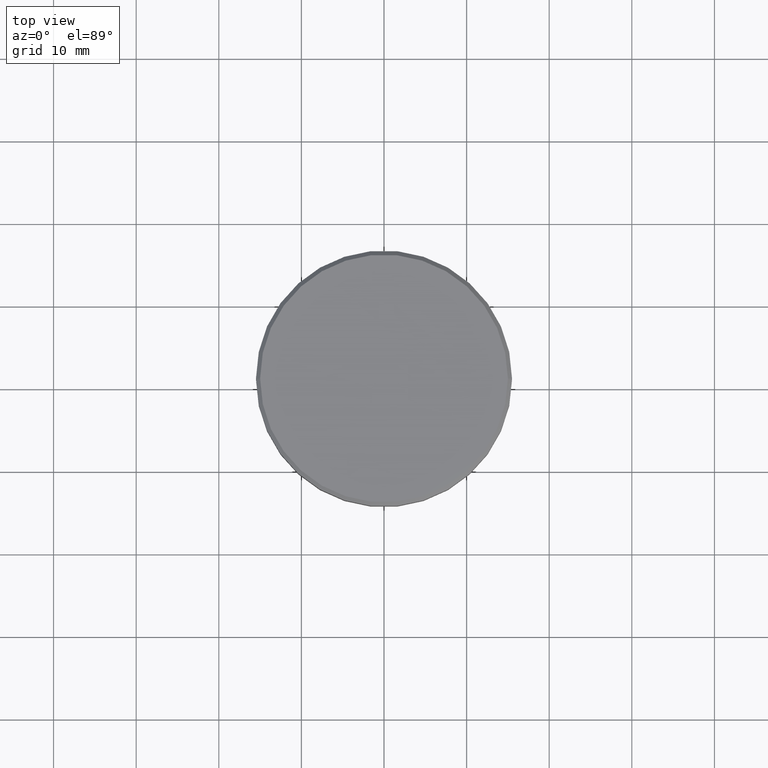
[diagram: clean part render]
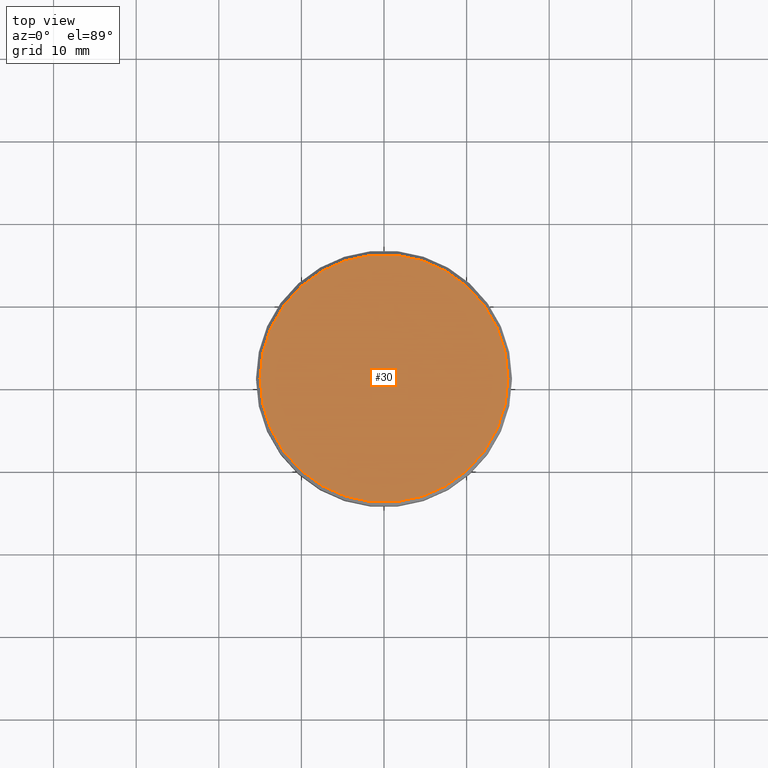
[diagram: same view with one face highlighted and labeled with its STEP entity id]
A machine part, top view. The second image highlights one B-rep face of the part: STEP entity #30.
In plain terms, the highlighted planar face has unit normal (0, -0, 1).
Its self-contained STEP definition (entity closure, byte-faithful):
#30 = ADVANCED_FACE ( 'NONE', ( #71 ), #76, .T. ) ;
#71 = FACE_OUTER_BOUND ( 'NONE', #735, .T. ) ;
#76 = PLANE ( 'NONE',  #536 ) ;
#121 = AXIS2_PLACEMENT_3D ( 'NONE', #626, #1172, #443 ) ;
#267 = CARTESIAN_POINT ( 'NONE',  ( 15.00000000000000000, 1.867586368699713376E-15, 0.000000000000000000 ) ) ;
#336 = CIRCLE ( 'NONE', #713, 15.00000000000000000 ) ;
#415 = ORIENTED_EDGE ( 'NONE', *, *, #593, .T. ) ;
#443 = DIRECTION ( 'NONE',  ( 1.000000000000000000, 0.000000000000000000, 0.000000000000000000 ) ) ;
#451 = DIRECTION ( 'NONE',  ( -0.000000000000000000, -0.000000000000000000, 1.000000000000000000 ) ) ;
#456 = DIRECTION ( 'NONE',  ( 1.000000000000000000, 0.000000000000000000, 0.000000000000000000 ) ) ;
#509 = EDGE_CURVE ( 'NONE', #1041, #946, #336, .T. ) ;
#536 = AXIS2_PLACEMENT_3D ( 'NONE', #902, #1084, #884 ) ;
#593 = EDGE_CURVE ( 'NONE', #946, #1041, #965, .T. ) ;
#626 = CARTESIAN_POINT ( 'NONE',  ( 0.000000000000000000, 0.000000000000000000, 0.000000000000000000 ) ) ;
#713 = AXIS2_PLACEMENT_3D ( 'NONE', #1005, #451, #456 ) ;
#735 = EDGE_LOOP ( 'NONE', ( #990, #415 ) ) ;
#884 = DIRECTION ( 'NONE',  ( 1.000000000000000000, 0.000000000000000000, 0.000000000000000000 ) ) ;
#902 = CARTESIAN_POINT ( 'NONE',  ( 0.000000000000000000, 0.000000000000000000, 0.000000000000000000 ) ) ;
#938 = CARTESIAN_POINT ( 'NONE',  ( -15.00000000000000000, 0.000000000000000000, 0.000000000000000000 ) ) ;
#946 = VERTEX_POINT ( 'NONE', #267 ) ;
#965 = CIRCLE ( 'NONE', #121, 15.00000000000000000 ) ;
#990 = ORIENTED_EDGE ( 'NONE', *, *, #509, .T. ) ;
#1005 = CARTESIAN_POINT ( 'NONE',  ( 0.000000000000000000, 0.000000000000000000, 0.000000000000000000 ) ) ;
#1041 = VERTEX_POINT ( 'NONE', #938 ) ;
#1084 = DIRECTION ( 'NONE',  ( 0.000000000000000000, -0.000000000000000000, 1.000000000000000000 ) ) ;
#1172 = DIRECTION ( 'NONE',  ( -0.000000000000000000, -0.000000000000000000, 1.000000000000000000 ) ) ;